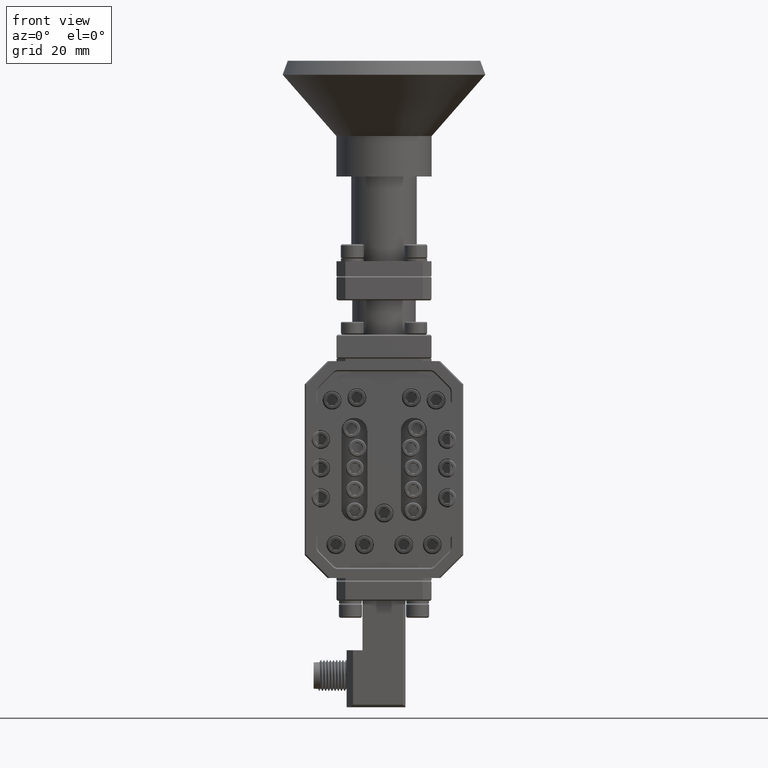
[diagram: clean part render]
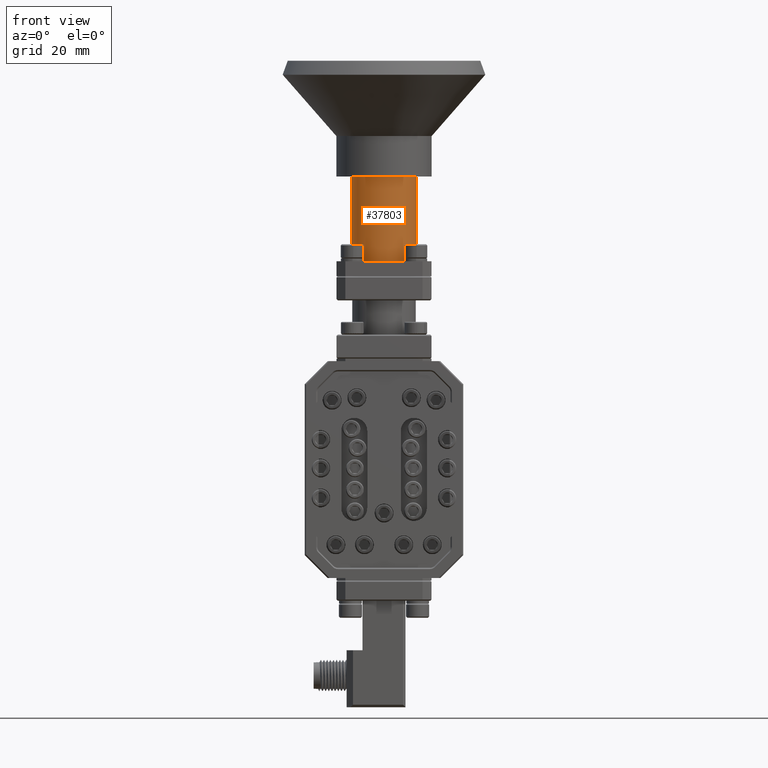
[diagram: same view with one face highlighted and labeled with its STEP entity id]
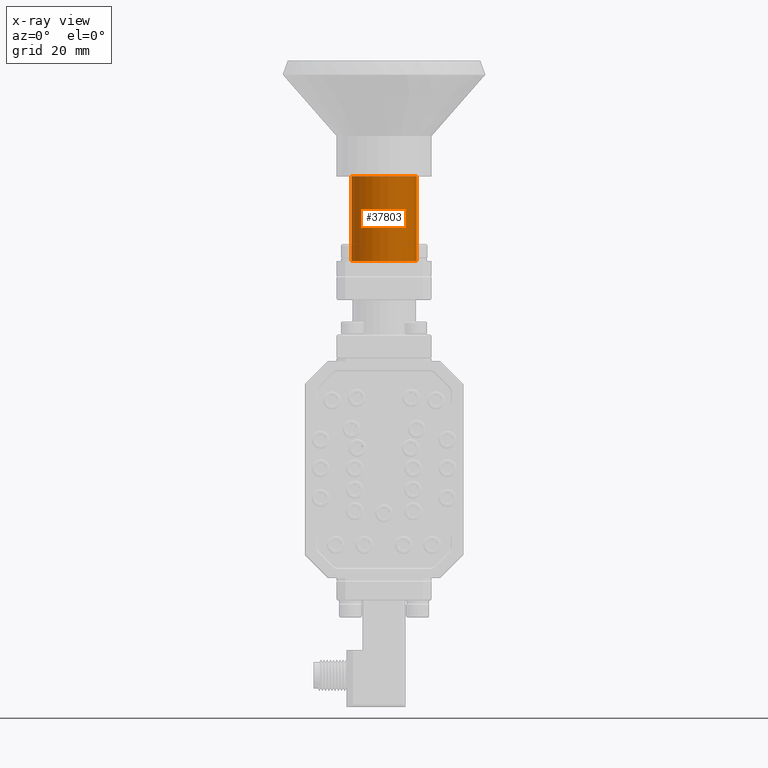
[diagram: x-ray of the same camera — body ghosted, the highlighted face saturated]
A machine part, front view. The second image highlights one B-rep face of the part: STEP entity #37803.
The next image is the same camera in x-ray: the body ghosted, the highlighted face saturated — about 0% of this face is hidden behind the body in this view.
In plain terms, the highlighted cylindrical surface (edge-blend (fillet) strip) has radius 6.5532 mm, axis along (0, -0, 1).
Its self-contained STEP definition (entity closure, byte-faithful):
#4246 = CARTESIAN_POINT ( 'NONE',  ( -0.2579999999647116238, 3.159588741368012100E-17, -2.429734198081021646 ) ) ;
#4940 = DIRECTION ( 'NONE',  ( -0.000000000000000000, 0.000000000000000000, -1.000000000000000000 ) ) ;
#5924 = EDGE_CURVE ( 'NONE', #35916, #43401, #31637, .T. ) ;
#6523 = CIRCLE ( 'NONE', #15689, 0.2579999999647115128 ) ;
#8767 = DIRECTION ( 'NONE',  ( 1.224646799147353207E-16, -0.000000000000000000, 1.000000000000000000 ) ) ;
#13458 = LINE ( 'NONE', #4246, #31136 ) ;
#14070 = CARTESIAN_POINT ( 'NONE',  ( 9.650216777326263237E-17, 0.000000000000000000, -0.9129999999963156476 ) ) ;
#15689 = AXIS2_PLACEMENT_3D ( 'NONE', #39221, #4940, #29692 ) ;
#18076 = AXIS2_PLACEMENT_3D ( 'NONE', #53565, #8767, #18921 ) ;
#18921 = DIRECTION ( 'NONE',  ( 1.000000000000000000, 0.000000000000000000, 0.000000000000000000 ) ) ;
#19211 = VERTEX_POINT ( 'NONE', #32644 ) ;
#20216 = EDGE_CURVE ( 'NONE', #19211, #43401, #26893, .T. ) ;
#20488 = CARTESIAN_POINT ( 'NONE',  ( -0.2579999999647115128, 3.159588741368012716E-17, -1.581999999996315687 ) ) ;
#23794 = VECTOR ( 'NONE', #51376, 39.37007874015748143 ) ;
#25360 = ORIENTED_EDGE ( 'NONE', *, *, #52419, .F. ) ;
#26893 = LINE ( 'NONE', #28166, #23794 ) ;
#28166 = CARTESIAN_POINT ( 'NONE',  ( 0.2579999999647114017, 0.000000000000000000, -2.429734198081021646 ) ) ;
#29031 = DIRECTION ( 'NONE',  ( 1.224646799147353207E-16, -0.000000000000000000, 1.000000000000000000 ) ) ;
#29227 = CARTESIAN_POINT ( 'NONE',  ( 0.2579999999647116238, 0.000000000000000000, -0.9129999999963156476 ) ) ;
#29607 = DIRECTION ( 'NONE',  ( 1.000000000000000000, 0.000000000000000000, 0.000000000000000000 ) ) ;
#29692 = DIRECTION ( 'NONE',  ( -1.000000000000000000, 0.000000000000000000, 0.000000000000000000 ) ) ;
#31136 = VECTOR ( 'NONE', #29031, 39.37007874015748143 ) ;
#31637 = CIRCLE ( 'NONE', #42782, 0.2579999999647115128 ) ;
#32644 = CARTESIAN_POINT ( 'NONE',  ( 0.2579999999647115128, 0.000000000000000000, -1.581999999996315687 ) ) ;
#33401 = CARTESIAN_POINT ( 'NONE',  ( -0.2579999999647114017, 3.159588741368012100E-17, -0.9129999999963156476 ) ) ;
#35916 = VERTEX_POINT ( 'NONE', #33401 ) ;
#37803 = ADVANCED_FACE ( 'NONE', ( #62489 ), #48123, .T. ) ;
#38603 = ORIENTED_EDGE ( 'NONE', *, *, #20216, .T. ) ;
#39221 = CARTESIAN_POINT ( 'NONE',  ( 1.457329691030469933E-17, 0.000000000000000000, -1.581999999996315687 ) ) ;
#42199 = ORIENTED_EDGE ( 'NONE', *, *, #59909, .F. ) ;
#42782 = AXIS2_PLACEMENT_3D ( 'NONE', #14070, #52533, #29607 ) ;
#43401 = VERTEX_POINT ( 'NONE', #29227 ) ;
#45596 = VERTEX_POINT ( 'NONE', #20488 ) ;
#47893 = EDGE_LOOP ( 'NONE', ( #42199, #25360, #38603, #57414 ) ) ;
#48123 = CYLINDRICAL_SURFACE ( 'NONE', #18076, 0.2579999999647115128 ) ;
#51376 = DIRECTION ( 'NONE',  ( 1.224646799147353207E-16, -0.000000000000000000, 1.000000000000000000 ) ) ;
#52419 = EDGE_CURVE ( 'NONE', #19211, #45596, #6523, .T. ) ;
#52533 = DIRECTION ( 'NONE',  ( 1.224646799147353207E-16, 0.000000000000000000, 1.000000000000000000 ) ) ;
#53565 = CARTESIAN_POINT ( 'NONE',  ( -8.924420031091364229E-17, 0.000000000000000000, -2.429734198081021646 ) ) ;
#57414 = ORIENTED_EDGE ( 'NONE', *, *, #5924, .F. ) ;
#59909 = EDGE_CURVE ( 'NONE', #45596, #35916, #13458, .T. ) ;
#62489 = FACE_OUTER_BOUND ( 'NONE', #47893, .T. ) ;